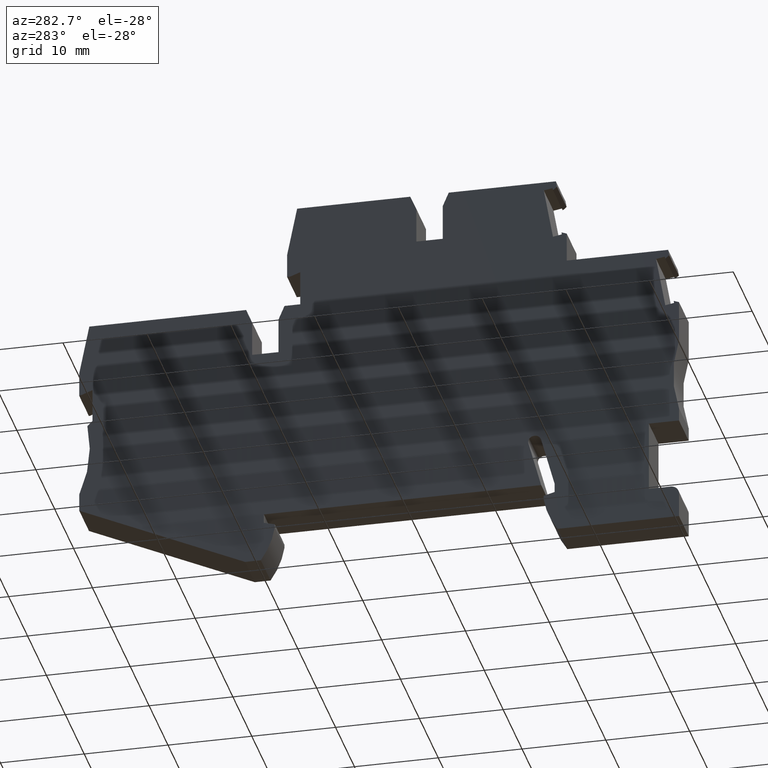
[diagram: clean part render]
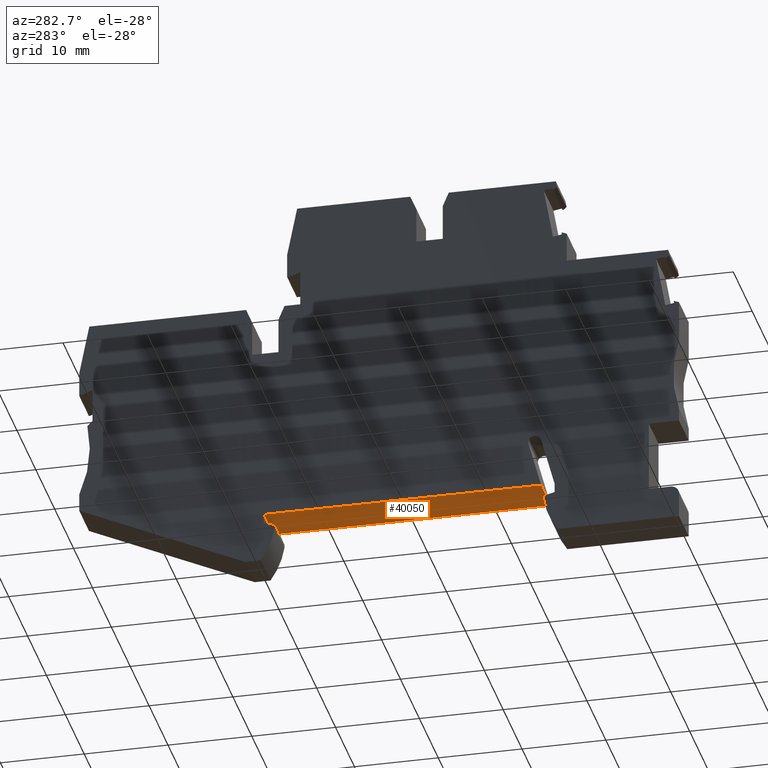
[diagram: same view with one face highlighted and labeled with its STEP entity id]
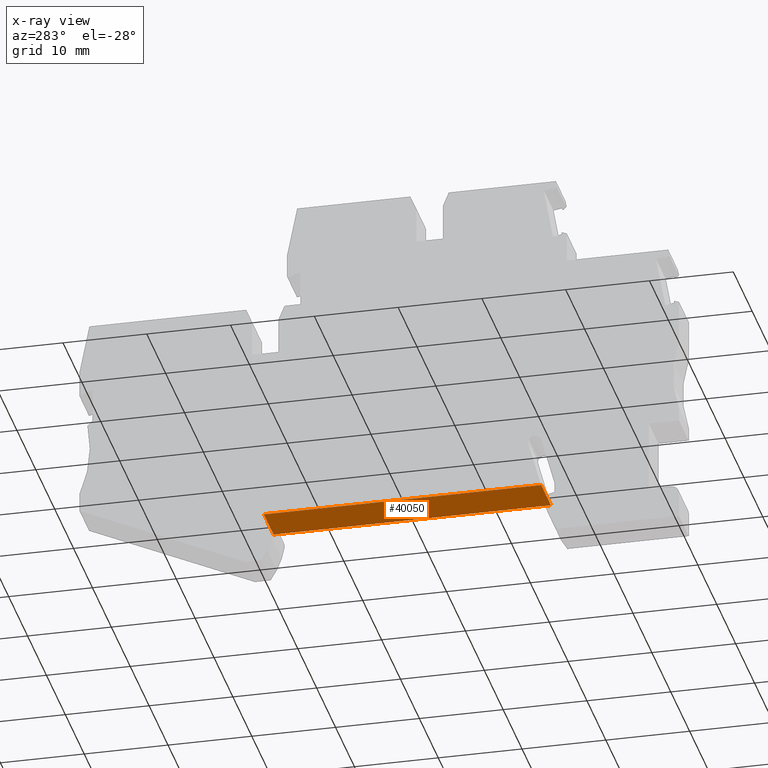
[diagram: x-ray of the same camera — body ghosted, the highlighted face saturated]
A machine part, auxiliary view. The second image highlights one B-rep face of the part: STEP entity #40050.
The next image is the same camera in x-ray: the body ghosted, the highlighted face saturated — about 0% of this face is hidden behind the body in this view.
In plain terms, the highlighted planar face has unit normal (0, -0, -1).
Its self-contained STEP definition (entity closure, byte-faithful):
#4710=CARTESIAN_POINT('',(151.768635760428,2.4967138221702,48.52));
#4720=VERTEX_POINT('',#4710);
#4750=CARTESIAN_POINT('',(14.196323,2.4967138221702,48.52));
#4760=DIRECTION('',(-1.,0.,0.));
#4770=VECTOR('',#4760,1.);
#4780=LINE('',#4750,#4770);
#4790=CARTESIAN_POINT('',(184.868635760428,2.4967138221702,48.52));
#4800=VERTEX_POINT('',#4790);
#4810=EDGE_CURVE('',#4800,#4720,#4780,.T.);
#8830=CARTESIAN_POINT('',(184.868635760428,2.4967138221702,
53.6699999999994));
#8840=VERTEX_POINT('',#8830);
#8870=CARTESIAN_POINT('',(14.196323,2.4967138221702,53.6699999999994));
#8880=DIRECTION('',(-1.,0.,0.));
#8890=VECTOR('',#8880,1.);
#8900=LINE('',#8870,#8890);
#8910=CARTESIAN_POINT('',(151.768635760428,2.4967138221702,
53.6699999999994));
#8920=VERTEX_POINT('',#8910);
#8930=EDGE_CURVE('',#8840,#8920,#8900,.T.);
#38990=CARTESIAN_POINT('',(184.868635760428,2.4967138221702,
53.6699999999994));
#39000=DIRECTION('',(0.,0.,-1.));
#39010=VECTOR('',#39000,1.);
#39020=LINE('',#38990,#39010);
#39030=EDGE_CURVE('',#8840,#4800,#39020,.T.);
#39890=CARTESIAN_POINT('',(152.420248446849,2.4967138221702,
53.6699999999994));
#39900=DIRECTION('',(-0.,-1.,-0.));
#39910=DIRECTION('',(-1.,0.,0.));
#39920=AXIS2_PLACEMENT_3D('',#39890,#39900,#39910);
#39930=PLANE('',#39920);
#39940=ORIENTED_EDGE('',*,*,#8930,.T.);
#39950=ORIENTED_EDGE('',*,*,#39030,.F.);
#39960=ORIENTED_EDGE('',*,*,#4810,.F.);
#39970=CARTESIAN_POINT('',(151.768635760428,2.4967138221702,53.67));
#39980=DIRECTION('',(0.,0.,1.));
#39990=VECTOR('',#39980,1.);
#40000=LINE('',#39970,#39990);
#40010=EDGE_CURVE('',#4720,#8920,#40000,.T.);
#40020=ORIENTED_EDGE('',*,*,#40010,.F.);
#40030=EDGE_LOOP('',(#40020,#39960,#39950,#39940));
#40040=FACE_OUTER_BOUND('',#40030,.T.);
#40050=ADVANCED_FACE('',(#40040),#39930,.T.);